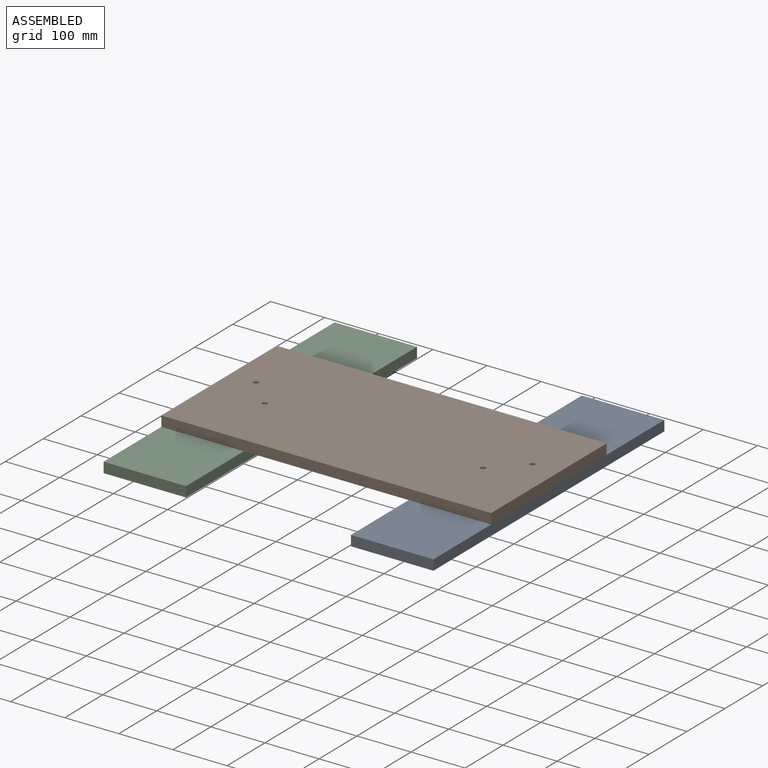
[diagram: assembled view]
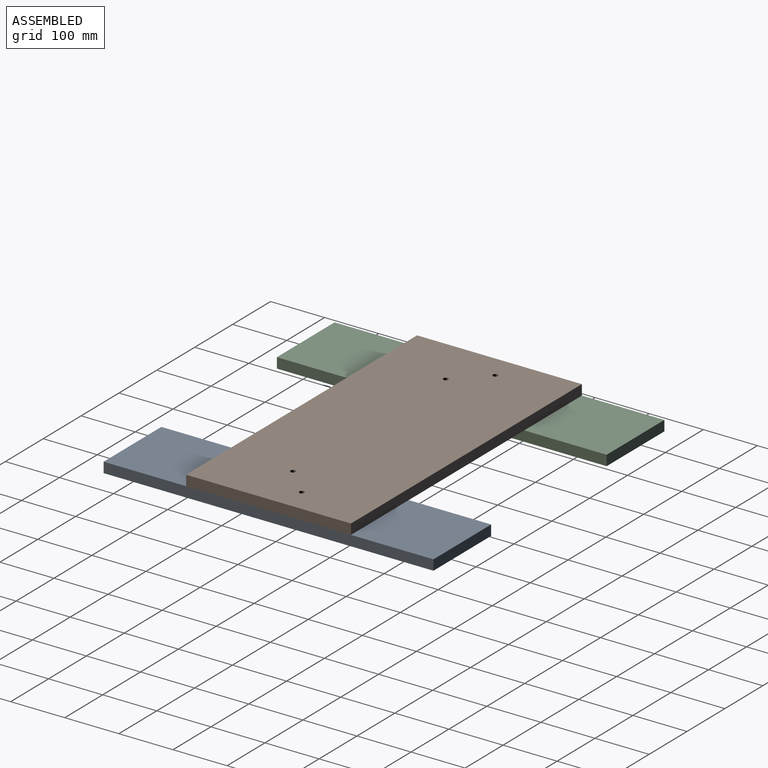
[diagram: assembled view, second angle]
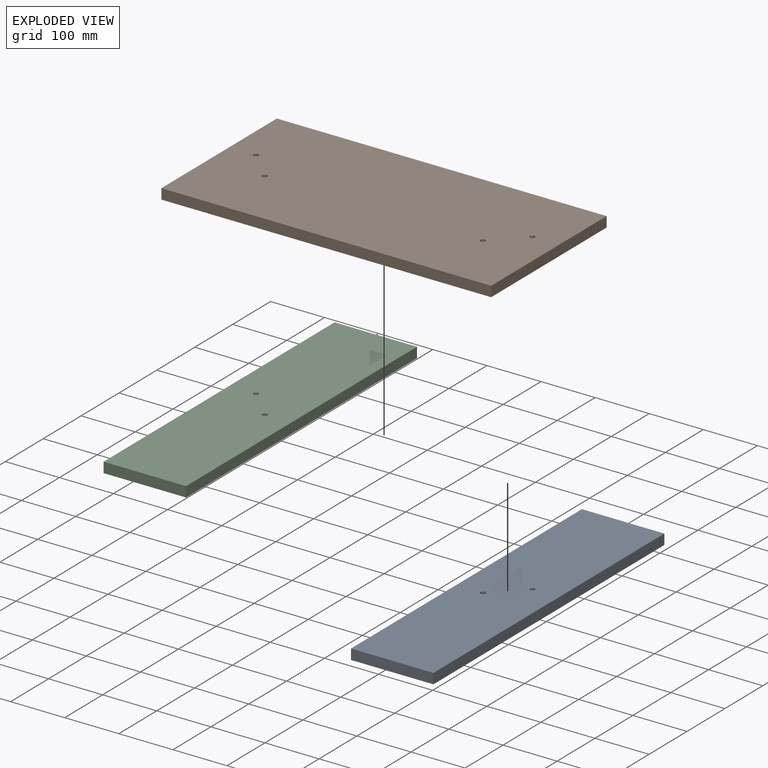
[diagram: exploded view]
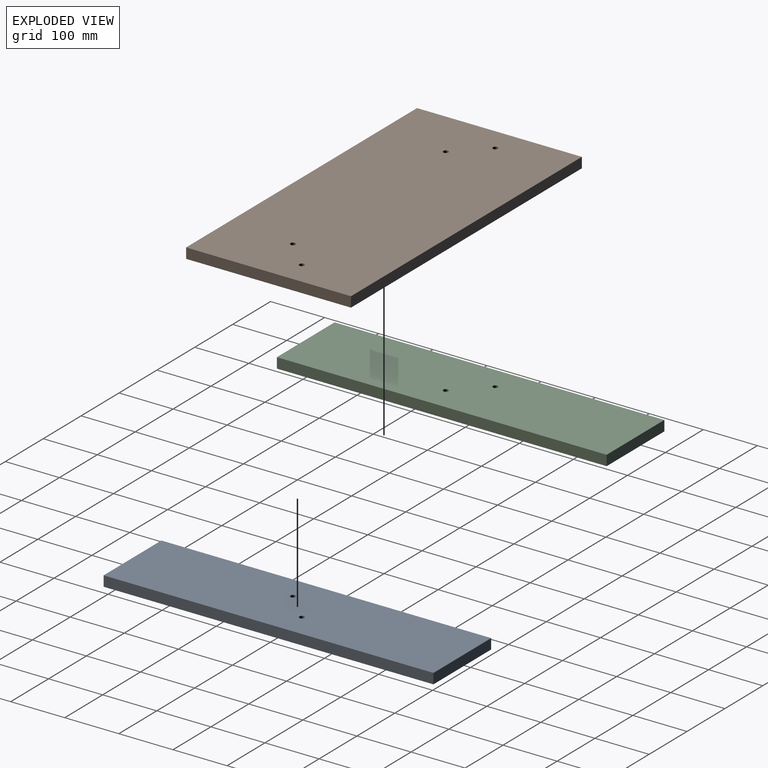
[diagram: exploded view, second angle]
ASSEMBLY  parts=3 mates=2
PART A: 8 faces, bbox 152.4x609.6x19.1 mm
  f0: plane 609.6x19.05mm, normal (1,0,0), area 11612.9mm2, adj f1,f4,f6,f7
  f1: plane 152.4x19.05mm, normal (0,1,0), area 2903.2mm2, adj f0,f2,f6,f7
  f2: plane 609.6x19.05mm, normal (-1,0,0), area 11612.9mm2, adj f1,f4,f6,f7
  f3: cylinder r=4.76mm len=19.05mm, axis (0,0,-1), area 570mm2, adj f6,f7
  f4: plane 152.4x19.05mm, normal (0,-1,0), area 2903.2mm2, adj f0,f2,f6,f7
  f5: cylinder r=4.76mm len=19.05mm, axis (0,0,-1), area 570mm2, adj f6,f7
  f6: plane 609.6x152.4mm, normal (0,0,1), area 92760.5mm2, adj f0,f1,f2,f3,f4,f5
  f7: plane 609.6x152.4mm, normal (0,0,-1), area 92760.5mm2, adj f0,f1,f2,f3,f4,f5
PART B: 10 faces, bbox 609.6x304.8x19.1 mm
  f0: plane 304.8x19.05mm, normal (1,0,0), area 5806.4mm2, adj f1,f6,f8,f9
  f1: plane 609.6x19.05mm, normal (0,1,0), area 11612.9mm2, adj f0,f2,f8,f9
  f2: plane 304.8x19.05mm, normal (-1,0,0), area 5806.4mm2, adj f1,f6,f8,f9
  f3: cylinder r=4.76mm len=19.05mm, axis (0,0,-1), area 570mm2, adj f8,f9
  f4: cylinder r=4.76mm len=19.05mm, axis (0,0,-1), area 570mm2, adj f8,f9
  f5: cylinder r=4.76mm len=19.05mm, axis (0,0,-1), area 570mm2, adj f8,f9
  f6: plane 609.6x19.05mm, normal (0,-1,0), area 11612.9mm2, adj f0,f2,f8,f9
  f7: cylinder r=4.76mm len=19.05mm, axis (0,0,-1), area 570mm2, adj f8,f9
  f8: plane 609.6x304.8mm, normal (0,0,1), area 185521.1mm2, adj f0,f1,f2,f3,f4,f5,f6,f7
  f9: plane 609.6x304.8mm, normal (0,0,-1), area 185521.1mm2, adj f0,f1,f2,f3,f4,f5,f6,f7
PART C: same geometry as A
PLACE A rot(axis=(0,1,0),180deg) t=(228.6,0,0)mm
PLACE B at identity
PLACE C t=(-228.6,0,-19.05)mm
MATE fastened C.f5 <-> B.f4  axis (0,0,1) through (-255.54,26.94,0)mm
MATE fastened A.f5 <-> B.f7  axis (0,0,1) through (255.54,26.94,0)mm
